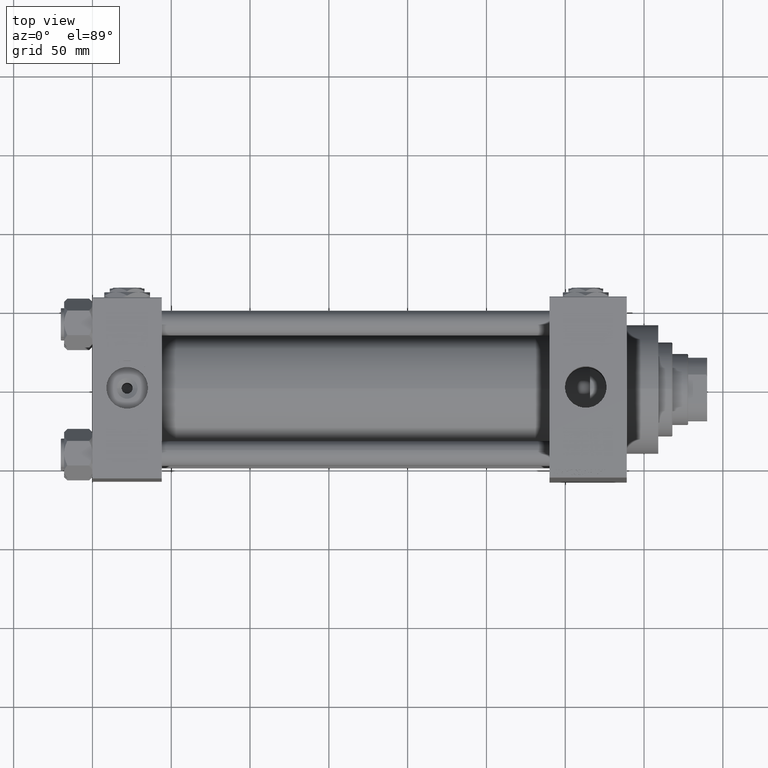
[diagram: clean part render]
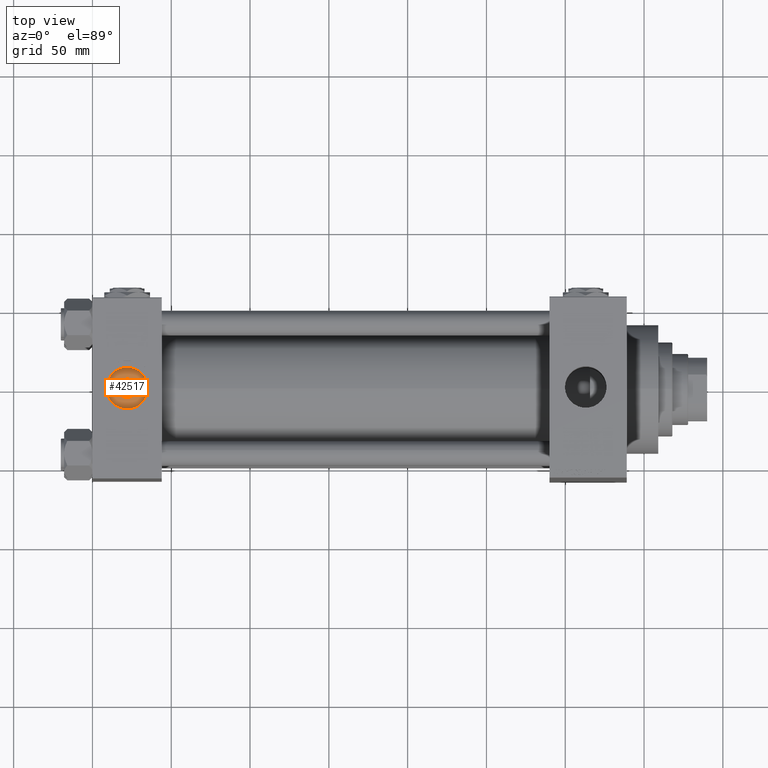
[diagram: same view with one face highlighted and labeled with its STEP entity id]
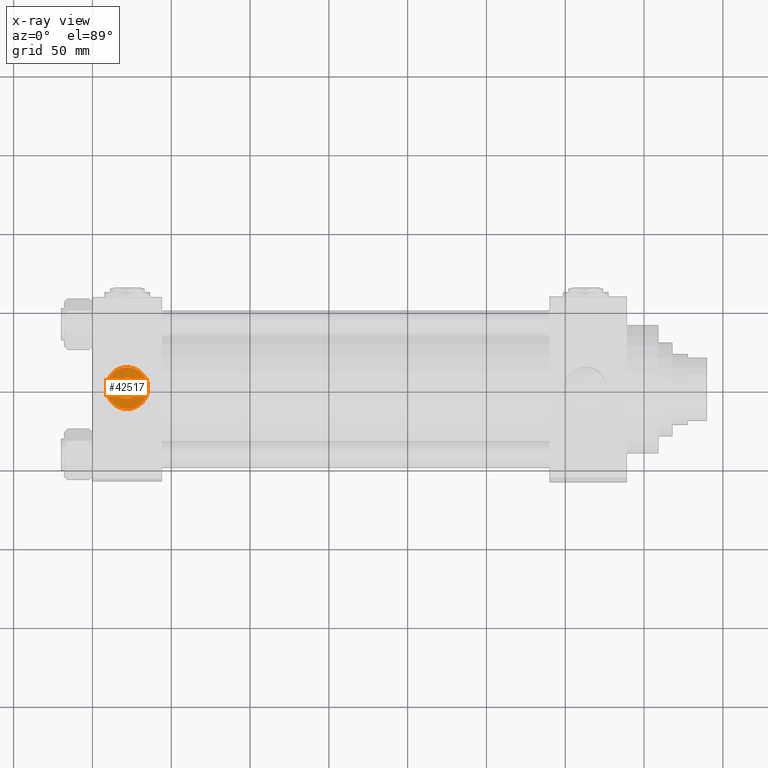
[diagram: x-ray of the same camera — body ghosted, the highlighted face saturated]
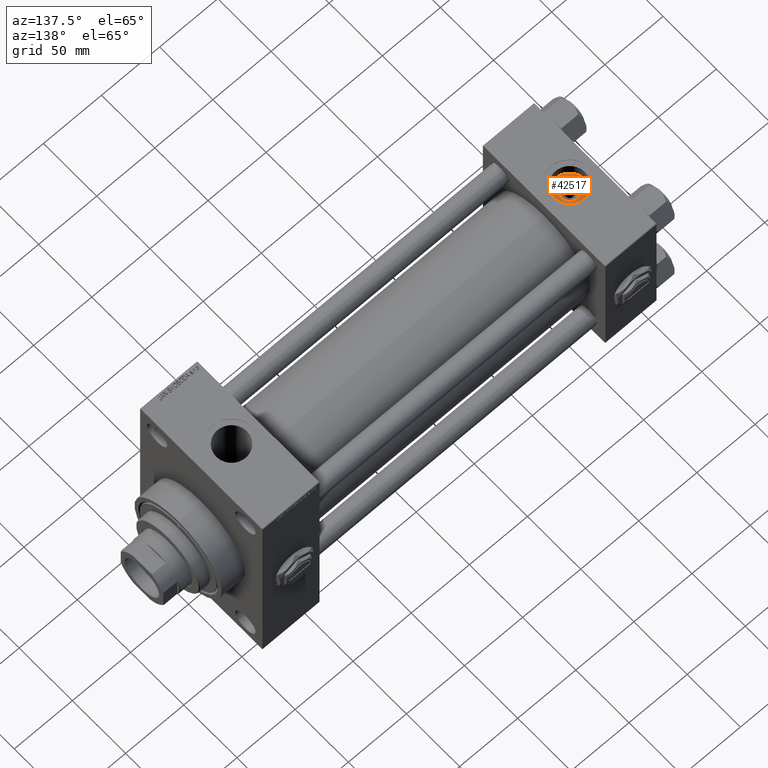
[diagram: same view with one face highlighted and labeled with its STEP entity id]
A machine part, top view. The second image highlights one B-rep face of the part: STEP entity #42517.
The next image is the same camera in x-ray: the body ghosted, the highlighted face saturated — about 0% of this face is hidden behind the body in this view.
A second angle (auxiliary view) of the same face is appended — the face is thin or edge-on in the first view.
In plain terms, the highlighted planar face has unit normal (0, 0, 1).
Its self-contained STEP definition (entity closure, byte-faithful):
#63 = AXIS2_PLACEMENT_3D ( 'NONE', #2135, #29490, #10230 ) ;
#1130 = CARTESIAN_POINT ( 'NONE',  ( 28.64000000000014623, -8.673617379884035472E-15, 46.70000000000000284 ) ) ;
#2135 = CARTESIAN_POINT ( 'NONE',  ( 22.00000000000000000, -8.673617379884035472E-15, 46.70000000000000284 ) ) ;
#3238 = VERTEX_POINT ( 'NONE', #42521 ) ;
#3880 = AXIS2_PLACEMENT_3D ( 'NONE', #10713, #25921, #41319 ) ;
#5396 = EDGE_LOOP ( 'NONE', ( #20704, #45638 ) ) ;
#10230 = DIRECTION ( 'NONE',  ( 1.000000000000000000, 0.000000000000000000, -0.000000000000000000 ) ) ;
#10494 = PLANE ( 'NONE',  #63 ) ;
#10713 = CARTESIAN_POINT ( 'NONE',  ( 22.00000000000000000, -8.673617379884035472E-15, 46.70000000000000284 ) ) ;
#11533 = CIRCLE ( 'NONE', #39798, 13.22000000000000242 ) ;
#13349 = DIRECTION ( 'NONE',  ( 1.000000000000000000, 0.000000000000000000, 0.000000000000000000 ) ) ;
#13677 = EDGE_CURVE ( 'NONE', #17796, #3238, #16344, .T. ) ;
#14588 = AXIS2_PLACEMENT_3D ( 'NONE', #43212, #47977, #13349 ) ;
#14836 = EDGE_CURVE ( 'NONE', #3238, #17796, #11533, .T. ) ;
#16344 = CIRCLE ( 'NONE', #24449, 13.22000000000000242 ) ;
#16347 = CARTESIAN_POINT ( 'NONE',  ( 8.779999999999994031, -7.054634311411234321E-15, 46.70000000000000284 ) ) ;
#17796 = VERTEX_POINT ( 'NONE', #16347 ) ;
#19103 = ORIENTED_EDGE ( 'NONE', *, *, #13677, .T. ) ;
#19395 = DIRECTION ( 'NONE',  ( 0.000000000000000000, 0.000000000000000000, 1.000000000000000000 ) ) ;
#20085 = DIRECTION ( 'NONE',  ( 0.000000000000000000, 0.000000000000000000, 1.000000000000000000 ) ) ;
#20704 = ORIENTED_EDGE ( 'NONE', *, *, #42973, .T. ) ;
#22961 = DIRECTION ( 'NONE',  ( 1.000000000000000000, 0.000000000000000000, 0.000000000000000000 ) ) ;
#24449 = AXIS2_PLACEMENT_3D ( 'NONE', #38115, #19395, #22961 ) ;
#24951 = FACE_BOUND ( 'NONE', #5396, .T. ) ;
#25691 = CIRCLE ( 'NONE', #3880, 6.640000000000146230 ) ;
#25918 = CIRCLE ( 'NONE', #14588, 6.640000000000146230 ) ;
#25921 = DIRECTION ( 'NONE',  ( -0.000000000000000000, -0.000000000000000000, -1.000000000000000000 ) ) ;
#27700 = CARTESIAN_POINT ( 'NONE',  ( 22.00000000000000000, -8.673617379884035472E-15, 46.70000000000000284 ) ) ;
#29490 = DIRECTION ( 'NONE',  ( 0.000000000000000000, 0.000000000000000000, 1.000000000000000000 ) ) ;
#32604 = CARTESIAN_POINT ( 'NONE',  ( 15.35999999999985377, -7.860451905250175219E-15, 46.70000000000000284 ) ) ;
#33532 = EDGE_CURVE ( 'NONE', #37691, #46291, #25691, .T. ) ;
#36021 = DIRECTION ( 'NONE',  ( 1.000000000000000000, 0.000000000000000000, 0.000000000000000000 ) ) ;
#37691 = VERTEX_POINT ( 'NONE', #32604 ) ;
#38115 = CARTESIAN_POINT ( 'NONE',  ( 22.00000000000000000, -8.673617379884035472E-15, 46.70000000000000284 ) ) ;
#39798 = AXIS2_PLACEMENT_3D ( 'NONE', #27700, #20085, #36021 ) ;
#41319 = DIRECTION ( 'NONE',  ( 1.000000000000000000, 0.000000000000000000, 0.000000000000000000 ) ) ;
#42517 = ADVANCED_FACE ( 'NONE', ( #24951, #44627 ), #10494, .T. ) ;
#42521 = CARTESIAN_POINT ( 'NONE',  ( 35.21999999999999886, -8.673617379884035472E-15, 46.70000000000000284 ) ) ;
#42973 = EDGE_CURVE ( 'NONE', #46291, #37691, #25918, .T. ) ;
#43212 = CARTESIAN_POINT ( 'NONE',  ( 22.00000000000000000, -8.673617379884035472E-15, 46.70000000000000284 ) ) ;
#44627 = FACE_OUTER_BOUND ( 'NONE', #49046, .T. ) ;
#44684 = ORIENTED_EDGE ( 'NONE', *, *, #14836, .T. ) ;
#45638 = ORIENTED_EDGE ( 'NONE', *, *, #33532, .T. ) ;
#46291 = VERTEX_POINT ( 'NONE', #1130 ) ;
#47977 = DIRECTION ( 'NONE',  ( -0.000000000000000000, -0.000000000000000000, -1.000000000000000000 ) ) ;
#49046 = EDGE_LOOP ( 'NONE', ( #44684, #19103 ) ) ;